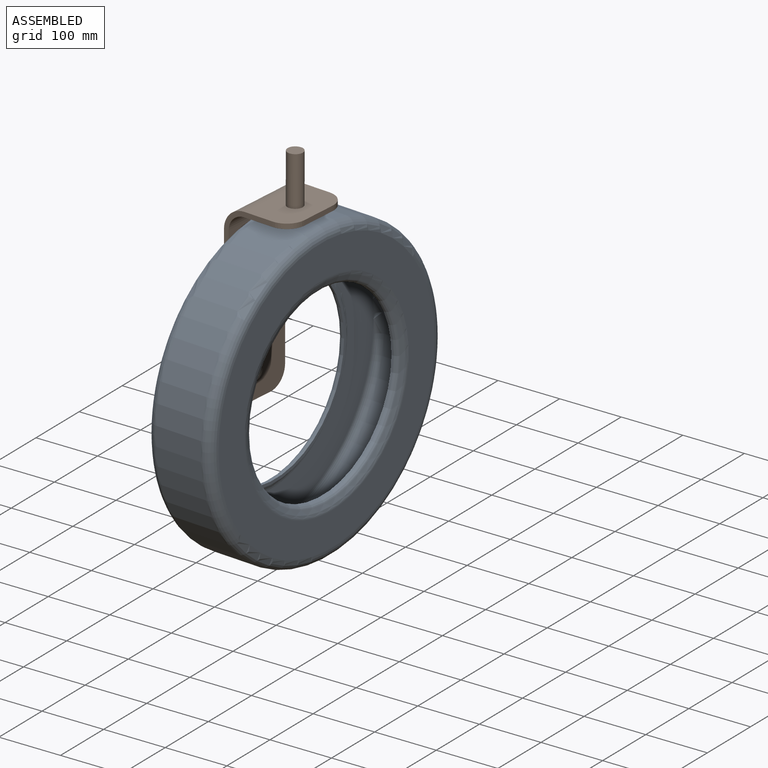
[diagram: assembled view]
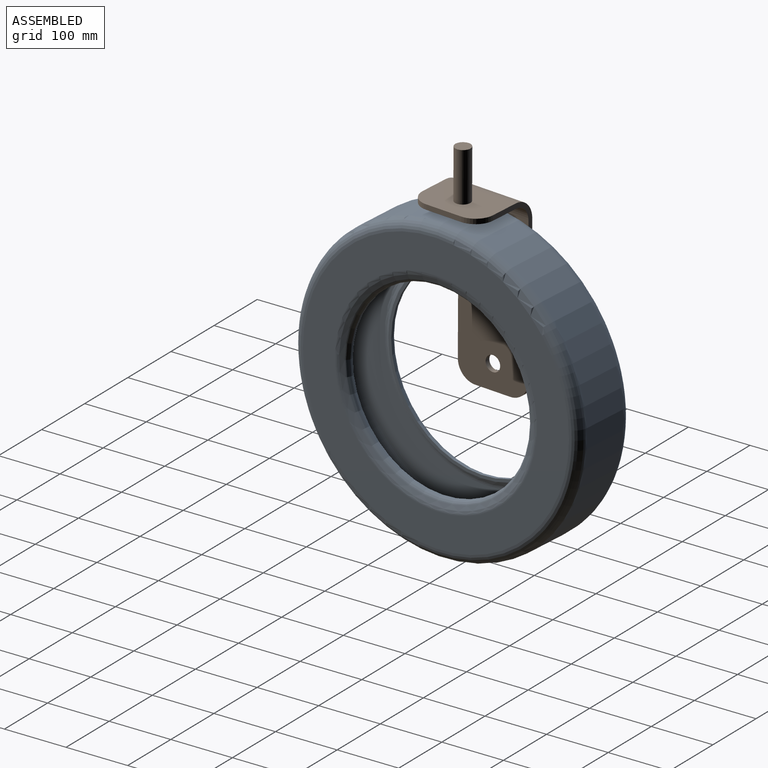
[diagram: assembled view, second angle]
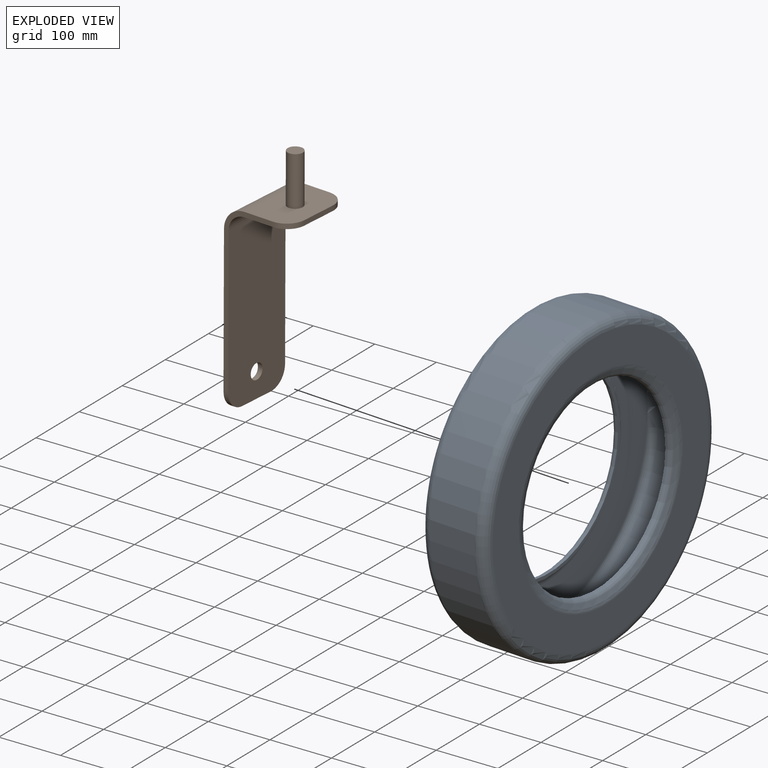
[diagram: exploded view]
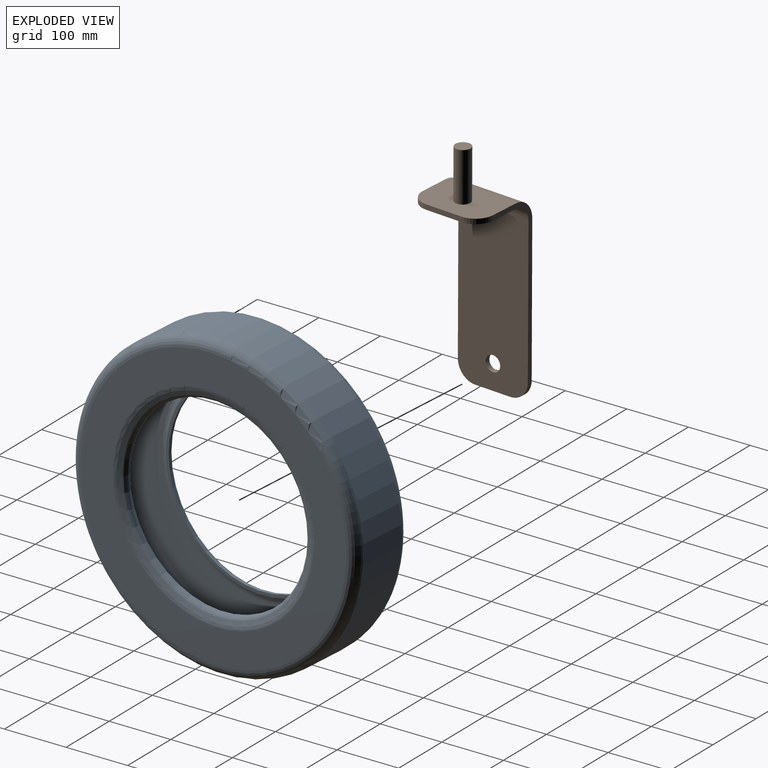
[diagram: exploded view, second angle]
ASSEMBLY  parts=2 mates=2
PART A: 28 faces, bbox 110x530.4x530.4 mm
  f0: cylinder r=245mm len=490mm, axis (-1,0,0), area 116992.9mm2, adj f1,f27
  f1: torus R=228mm, axis (-1,0,0), area 40070.4mm2, adj f0,f2
  f2: plane 456x456mm, normal (-1,0,0), area 69287.8mm2, adj f1,f3
  f3: torus R=173mm, axis (-1,0,0), area 6610.5mm2, adj f2,f4
  f4: cone r=166.94mm half-angle=69.1deg, axis (-1,0,0), area 8203.7mm2, adj f3,f5
  f5: torus R=162.32mm, axis (-1,0,0), area 9469.1mm2, adj f4,f6
  f6: cylinder r=154.32mm len=308.64mm, axis (-1,0,0), area 2895.9mm2, adj f5,f7
  f7: plane 318.64x318.64mm, normal (1,0,0), area 4926.6mm2, adj f6,f8
  f8: cylinder r=159.32mm len=318.64mm, axis (-1,0,0), area 2989.7mm2, adj f7,f9
  f9: torus R=162.32mm, axis (-1,0,0), area 3639mm2, adj f8,f10
  f10: cone r=168.73mm half-angle=69.1deg, axis (-1,0,0), area 8293.2mm2, adj f9,f11
  f11: torus R=173mm, axis (-1,0,0), area 4691mm2, adj f10,f12
  f12: plane 456x456mm, normal (1,0,0), area 69287.8mm2, adj f11,f13
  f13: torus R=228mm, axis (-1,0,0), area 27908mm2, adj f12,f14
  f14: cylinder r=240mm len=480mm, axis (-1,0,0), area 114605.3mm2, adj f13,f15
  f15: torus R=228mm, axis (-1,0,0), area 27908mm2, adj f14,f16
  f16: plane 456x456mm, normal (-1,0,0), area 69287.8mm2, adj f15,f17
  f17: torus R=173mm, axis (-1,0,0), area 4691mm2, adj f16,f18
  f18: cone r=168.73mm half-angle=69.1deg, axis (1,0,0), area 8293.2mm2, adj f17,f19
  f19: torus R=162.32mm, axis (-1,0,0), area 3639mm2, adj f18,f20
  f20: cylinder r=159.32mm len=318.64mm, axis (-1,0,0), area 2989.7mm2, adj f19,f21
  f21: plane 318.64x318.64mm, normal (-1,0,0), area 4926.6mm2, adj f20,f22
  f22: cylinder r=154.32mm len=308.64mm, axis (-1,0,0), area 2895.9mm2, adj f21,f23
  f23: torus R=162.32mm, axis (-1,0,0), area 9469.1mm2, adj f22,f24
  f24: cone r=166.94mm half-angle=69.1deg, axis (1,0,0), area 8203.7mm2, adj f23,f25
  f25: torus R=173mm, axis (-1,0,0), area 6610.5mm2, adj f24,f26
  f26: plane 456x456mm, normal (1,0,0), area 69287.8mm2, adj f25,f27
  f27: torus R=228mm, axis (-1,0,0), area 40070.4mm2, adj f0,f26
PART B: 17 faces, bbox 113x120x383 mm
  f0: cylinder r=27mm len=120mm, axis (0,1,0), area 5089.4mm2, adj f1,f7,f8,f9
  f1: plane 120x78mm, normal (0,0,-1), area 8973.7mm2, adj f0,f2,f8,f9,f11,f13
  f2: plane 60x8mm, normal (1,0,0), area 480mm2, adj f1,f3,f11,f13
  f3: plane 120x78mm, normal (0,0,1), area 8482.8mm2, adj f2,f4,f8,f9,f11,f13,f15
  f4: cylinder r=35mm len=120mm, axis (0,1,0), area 6597.3mm2, adj f3,f5,f8,f9
  f5: plane 268x120mm, normal (-1,0,0), area 31282.8mm2, adj f4,f6,f8,f9,f10,f12,f14
  f6: plane 60x8mm, normal (0,0,-1), area 480mm2, adj f5,f7,f10,f12
  f7: plane 268x120mm, normal (1,0,0), area 31282.8mm2, adj f0,f6,f8,f9,f10,f12,f14
  f8: plane 273x83mm, normal (0,-1,0), area 2677.6mm2, adj f0,f1,f3,f4,f5,f7,f12,f13
  f9: plane 273x83mm, normal (0,1,0), area 2677.6mm2, adj f0,f1,f3,f4,f5,f7,f10,f11
  f10: cylinder r=30mm len=30mm, axis (1,0,0), area 377mm2, adj f5,f6,f7,f9
  f11: cylinder r=30mm len=30mm, axis (0,0,1), area 377mm2, adj f1,f2,f3,f9
  f12: cylinder r=30mm len=30mm, axis (-1,0,0), area 377mm2, adj f5,f6,f7,f8
  f13: cylinder r=30mm len=30mm, axis (0,0,-1), area 377mm2, adj f1,f2,f3,f8
  f14: cylinder r=12.5mm len=25mm, axis (-1,0,0), area 628.3mm2, adj f5,f7
  f15: cylinder r=12.5mm len=80mm, axis (0,0,-1), area 6283.2mm2, adj f3,f16
  f16: plane 25x25mm, normal (0,0,1), area 490.9mm2, adj f15
PLACE A rot(axis=(-0.06,0,-1),4.1deg) t=(-298.66,-216.3,170.18)mm
PLACE B rot(axis=(-0.06,0,-1),4.1deg) t=(-298.66,-216.3,170.18)mm
MATE cylindrical B.f14 <-> A.f0  axis (-1,0.07,0) through (-371.48,-211.09,170.18)mm
MATE planar B.f7 <-> A.f0  axis (1,-0.07,0) through (-363.47,-211.24,267.23)mm
